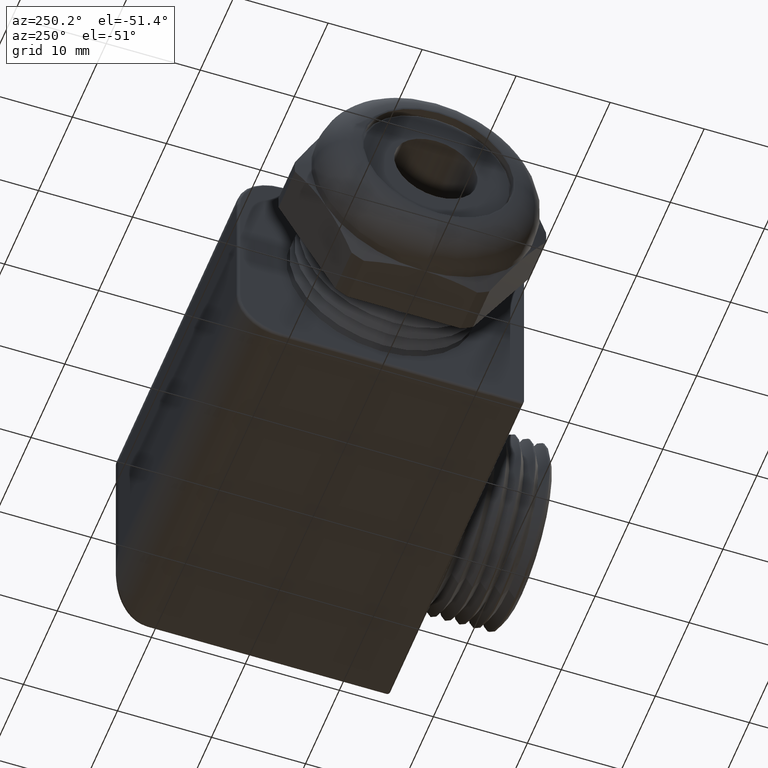
[diagram: clean part render]
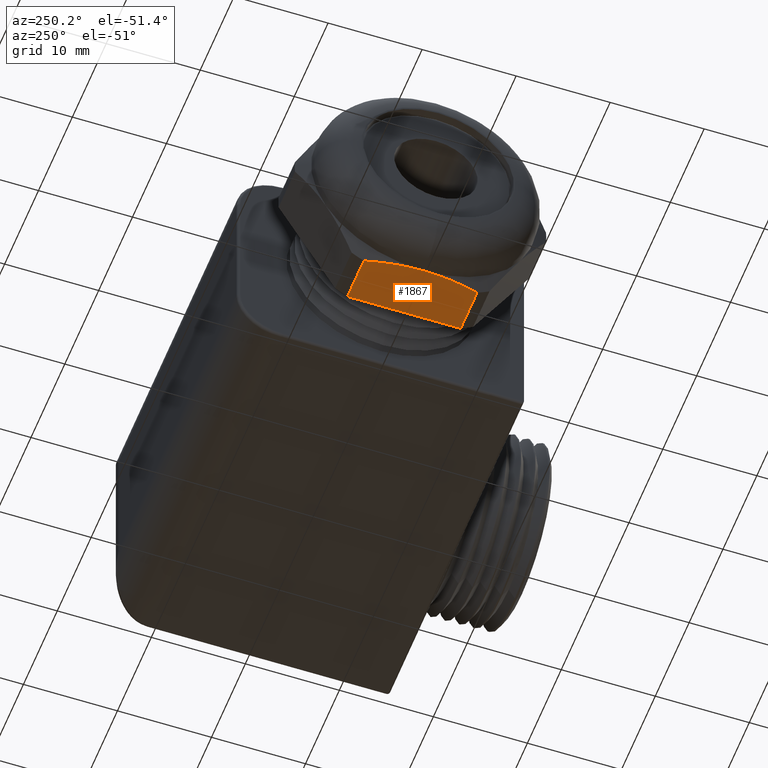
[diagram: same view with one face highlighted and labeled with its STEP entity id]
A machine part, auxiliary view. The second image highlights one B-rep face of the part: STEP entity #1867.
In plain terms, the highlighted planar face has unit normal (0, 0, 1).
Its self-contained STEP definition (entity closure, byte-faithful):
#1586 = VERTEX_POINT ( 'NONE', #3248 ) ;
#1603 = EDGE_LOOP ( 'NONE', ( #1823, #1893, #1898, #1886, #1827 ) ) ;
#1627 = VERTEX_POINT ( 'NONE', #3140 ) ;
#1642 = VERTEX_POINT ( 'NONE', #3188 ) ;
#1741 = EDGE_CURVE ( 'NONE', #1742, #1642, #3447, .T. ) ;
#1742 = VERTEX_POINT ( 'NONE', #3433 ) ;
#1789 = VERTEX_POINT ( 'NONE', #3729 ) ;
#1791 = EDGE_CURVE ( 'NONE', #1789, #1627, #3728, .T. ) ;
#1817 = EDGE_CURVE ( 'NONE', #1789, #1742, #3669, .T. ) ;
#1821 = EDGE_CURVE ( 'NONE', #1586, #1642, #3660, .T. ) ;
#1823 = ORIENTED_EDGE ( 'NONE', *, *, #1836, .F. ) ;
#1827 = ORIENTED_EDGE ( 'NONE', *, *, #1821, .F. ) ;
#1836 = EDGE_CURVE ( 'NONE', #1627, #1586, #3619, .T. ) ;
#1867 = ADVANCED_FACE ( 'NONE', ( #3594 ), #3604, .F. ) ;
#1886 = ORIENTED_EDGE ( 'NONE', *, *, #1741, .T. ) ;
#1893 = ORIENTED_EDGE ( 'NONE', *, *, #1791, .F. ) ;
#1898 = ORIENTED_EDGE ( 'NONE', *, *, #1817, .T. ) ;
#3140 = CARTESIAN_POINT ( 'NONE',  ( -0.4625953395545472400, 0.2370589800028679000, -0.4699999999999999200 ) ) ;
#3188 = CARTESIAN_POINT ( 'NONE',  ( -0.4625953395545472400, -0.2370589800028679300, -0.4699999999999999200 ) ) ;
#3248 = CARTESIAN_POINT ( 'NONE',  ( -0.4951578947368421300, 0.0000000000000000000, -0.4699999999999999200 ) ) ;
#3433 = CARTESIAN_POINT ( 'NONE',  ( -0.2711578947368420400, -0.2370589800028678800, -0.4699999999999999200 ) ) ;
#3434 = DIRECTION ( 'NONE',  ( -1.000000000000000000, 0.0000000000000000000, 0.0000000000000000000 ) ) ;
#3435 = VECTOR ( 'NONE', #3434, 39.37007874015748100 ) ;
#3446 = CARTESIAN_POINT ( 'NONE',  ( 1.232614984114216400, -0.2370589800028679000, -0.4699999999999998600 ) ) ;
#3447 = LINE ( 'NONE', #3446, #3435 ) ;
#3542 = DIRECTION ( 'NONE',  ( 1.000000000000000000, 0.0000000000000000000, 0.0000000000000000000 ) ) ;
#3543 = DIRECTION ( 'NONE',  ( 0.0000000000000000000, 0.0000000000000000000, 1.000000000000000000 ) ) ;
#3544 = CARTESIAN_POINT ( 'NONE',  ( 1.232614984114216400, -0.2370589800028678500, -0.4699999999999999200 ) ) ;
#3545 = AXIS2_PLACEMENT_3D ( 'NONE', #3544, #3543, #3542 ) ;
#3583 = CARTESIAN_POINT ( 'NONE',  ( -0.4951578947368421300, 0.0000000000000000000, -0.4699999999999999200 ) ) ;
#3584 = CARTESIAN_POINT ( 'NONE',  ( -0.4951578947368420200, 0.01993307520393079700, -0.4699999999999999200 ) ) ;
#3585 = CARTESIAN_POINT ( 'NONE',  ( -0.4944228269130936400, 0.03990791673936994900, -0.4699999999999999700 ) ) ;
#3586 = CARTESIAN_POINT ( 'NONE',  ( -0.4914996775542012100, 0.07994015961003214700, -0.4699999999999999200 ) ) ;
#3587 = CARTESIAN_POINT ( 'NONE',  ( -0.4893007990230663900, 0.1000457351754411300, -0.4699999999999999700 ) ) ;
#3588 = CARTESIAN_POINT ( 'NONE',  ( -0.4807999351653453600, 0.1596106974453303200, -0.4699999999999998600 ) ) ;
#3594 = FACE_OUTER_BOUND ( 'NONE', #1603, .T. ) ;
#3604 = PLANE ( 'NONE',  #3545 ) ;
#3617 = CARTESIAN_POINT ( 'NONE',  ( -0.4725966823698529200, 0.1985928575009400000, -0.4699999999999998600 ) ) ;
#3618 = CARTESIAN_POINT ( 'NONE',  ( -0.4625953395545472400, 0.2370589800028679000, -0.4699999999999999200 ) ) ;
#3619 = B_SPLINE_CURVE_WITH_KNOTS ( 'NONE', 3,
 ( #3618, #3617, #3588, #3587, #3586, #3585, #3584, #3583 ),
 .UNSPECIFIED., .F., .F.,
 ( 4, 2, 2, 4 ),
 ( 0.006661121961475093000, 0.009688740552983573400, 0.01120254984873781400, 0.01271635914449205400 ),
 .UNSPECIFIED. ) ;
#3653 = CARTESIAN_POINT ( 'NONE',  ( -0.4625953395545472400, -0.2370589800028679300, -0.4699999999999999200 ) ) ;
#3654 = CARTESIAN_POINT ( 'NONE',  ( -0.4726711889520448000, -0.1983062980488029500, -0.4699999999999998600 ) ) ;
#3655 = CARTESIAN_POINT ( 'NONE',  ( -0.4809596460607208400, -0.1587199220256359000, -0.4699999999999999200 ) ) ;
#3656 = CARTESIAN_POINT ( 'NONE',  ( -0.4921863150184905800, -0.07959448685020668900, -0.4699999999999999700 ) ) ;
#3657 = CARTESIAN_POINT ( 'NONE',  ( -0.4951578947368420200, -0.03988166555569469500, -0.4700000000000000300 ) ) ;
#3658 = CARTESIAN_POINT ( 'NONE',  ( -0.4951578947368421300, 0.0000000000000000000, -0.4699999999999999200 ) ) ;
#3660 = B_SPLINE_CURVE_WITH_KNOTS ( 'NONE', 3,
 ( #3658, #3657, #3656, #3655, #3654, #3653 ),
 .UNSPECIFIED., .F., .F.,
 ( 4, 2, 4 ),
 ( 0.01271635914449205400, 0.01574515602759750400, 0.01877395291070295400 ),
 .UNSPECIFIED. ) ;
#3661 = DIRECTION ( 'NONE',  ( 0.0000000000000000000, -1.000000000000000000, 0.0000000000000000000 ) ) ;
#3662 = VECTOR ( 'NONE', #3661, 39.37007874015748100 ) ;
#3663 = CARTESIAN_POINT ( 'NONE',  ( -0.2711578947368419900, -0.2370589800028678500, -0.4699999999999999200 ) ) ;
#3669 = LINE ( 'NONE', #3663, #3662 ) ;
#3725 = DIRECTION ( 'NONE',  ( -1.000000000000000000, 0.0000000000000000000, 0.0000000000000000000 ) ) ;
#3726 = VECTOR ( 'NONE', #3725, 39.37007874015748100 ) ;
#3727 = CARTESIAN_POINT ( 'NONE',  ( 1.232614984114216400, 0.2370589800028679000, -0.4699999999999999200 ) ) ;
#3728 = LINE ( 'NONE', #3727, #3726 ) ;
#3729 = CARTESIAN_POINT ( 'NONE',  ( -0.2711578947368420400, 0.2370589800028679000, -0.4699999999999999200 ) ) ;